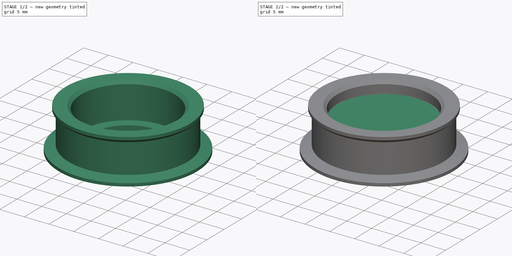
[diagram: build sequence overview — one tinted view per stage of 2, left to right]
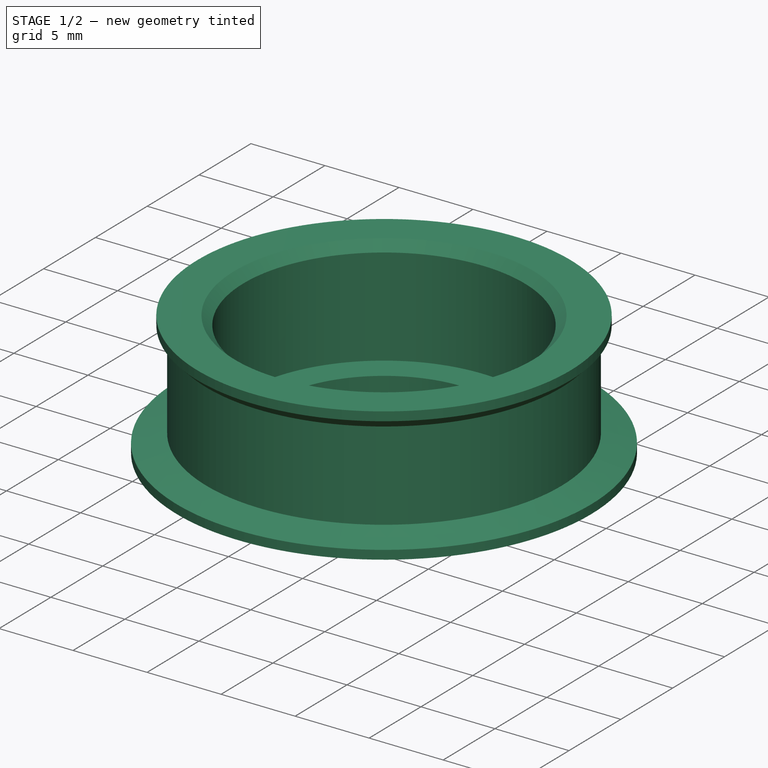
[diagram: stage 1 of 2 — iso view after this stage's code; geometry added in this stage tinted green]
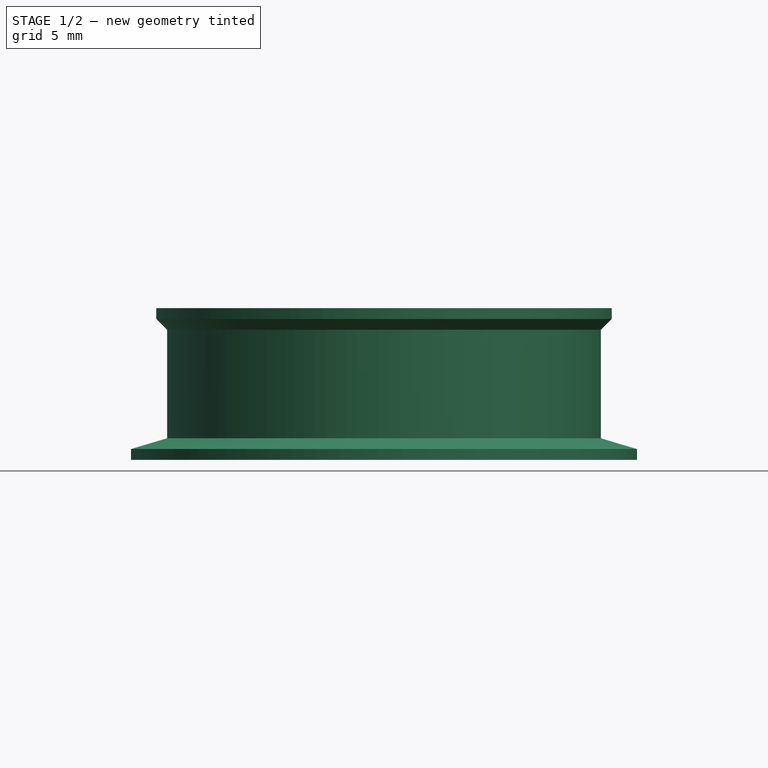
[diagram: stage 1 of 2 — front view after this stage's code; geometry added in this stage tinted green]
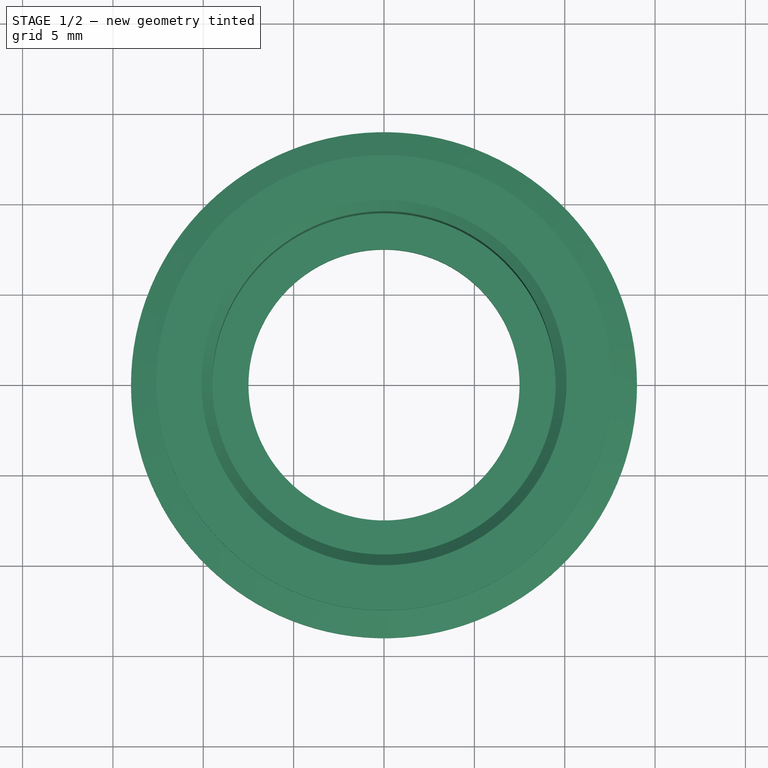
[diagram: stage 1 of 2 — top view after this stage's code; geometry added in this stage tinted green]
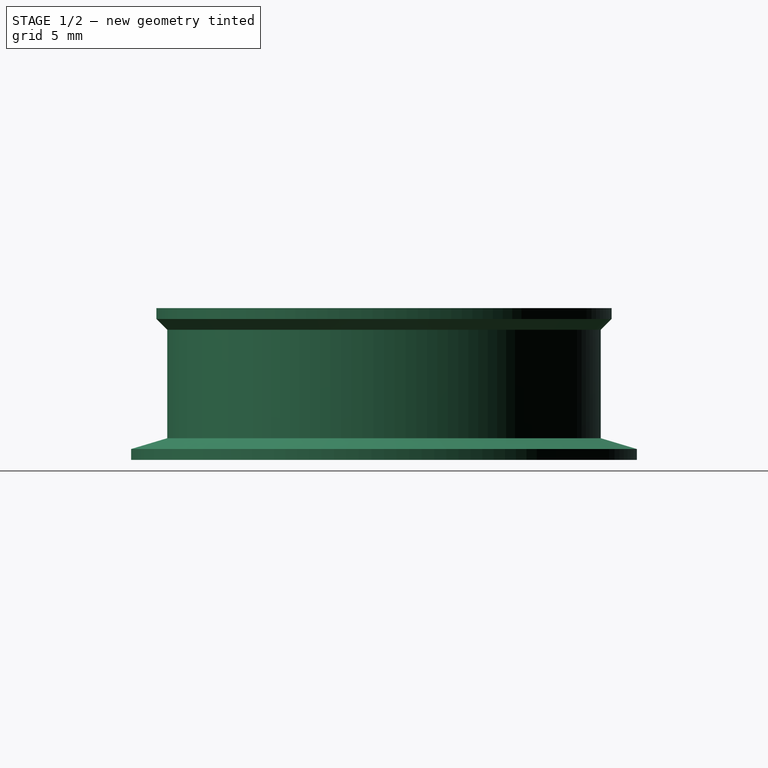
[diagram: stage 1 of 2 — right view after this stage's code; geometry added in this stage tinted green]
FCSTD DOCUMENT  (FreeCAD 0.16R6712 (Git))
Label: bearing_idler_v2
License: All rights reserved
LicenseURL: http://en.wikipedia.org/wiki/All_rights_reserved
objects: Part::Cylinder×1, Sketcher::SketchObject×1, PartDesign::Revolution×1, PartDesign::Chamfer×1
note: 5 computed .brp shape members not serialized (recipe doc carries the construction recipe); baked Part::Feature solids carry a one-line shape summary decoded from their .brp

FEATURE [Sketcher::SketchObject] Sketch
  Placement = pos=(0,0,0) rot=(1,0,0;1.5708rad)
  expr: Constraints[13] = 19mm / 2
  sketch-geometry (13):
    g0: LineSegment StartX=-14 StartY=0 StartZ=0 EndX=-14 EndY=0.6 EndZ=0
    g1: LineSegment StartX=-14 StartY=0.6 StartZ=0 EndX=-12 EndY=1.2 EndZ=0
    g2: LineSegment StartX=-12 StartY=8.4 StartZ=0 EndX=-9.5 EndY=8.4 EndZ=0
    g3: LineSegment StartX=-9.5 StartY=8.4 StartZ=0 EndX=-9.5 EndY=1.2 EndZ=0
    g4: LineSegment StartX=-9.5 StartY=1.2 StartZ=0 EndX=-7.5 EndY=1.2 EndZ=0
    g5: LineSegment StartX=-7.5 StartY=1.2 StartZ=0 EndX=-7.5 EndY=0 EndZ=0
    g6: LineSegment StartX=-7.5 StartY=0 StartZ=0 EndX=-14 EndY=0 EndZ=0
    g7: LineSegment [constr] StartX=-12 StartY=1.2 StartZ=0 EndX=-9.5 EndY=1.2 EndZ=0
    g8: LineSegment StartX=-12 StartY=1.2 StartZ=0 EndX=-12 EndY=7.2 EndZ=0
    g9: LineSegment StartX=-12 StartY=7.2 StartZ=0 EndX=-12.6 EndY=7.8 EndZ=0
    g10: LineSegment StartX=-12.6 StartY=7.8 StartZ=0 EndX=-12.6 EndY=8.4 EndZ=0
    g11: LineSegment StartX=-12.6 StartY=8.4 StartZ=0 EndX=-12 EndY=8.4 EndZ=0
    g12: LineSegment [constr] StartX=-12 StartY=8.4 StartZ=0 EndX=-12 EndY=7.2 EndZ=0
  constraints (37):
    c: PointOnObject(g0,g-1)
    c: Vertical(g0)
    c: Coincident(g0,g1)
    c: Horizontal(g2)
    c: Coincident(g2,g3)
    c: Vertical(g3)
    c: Coincident(g3,g4)
    c: Horizontal(g4)
    c: Coincident(g4,g5)
    c: PointOnObject(g5,g-1)
    c: Vertical(g5)
    c: Coincident(g5,g6)
    c: Coincident(g6,g0)
    c: DistanceX(g2,g-1) = 9.5
    c: DistanceY(g5,g5) = 1.2
    c: DistanceX(g2,g-1) = 12
    c: DistanceX(g0,g-1) = 14
    c: Coincident(g7,g1)
    c: Coincident(g7,g3)
    c: Horizontal(g7)
    c: DistanceY(g0,g0) = 0.6
    c: DistanceX(g4,g4) = 2
    c: Coincident(g1,g8)
    c: Vertical(g8)
    c: Coincident(g8,g9)
    c: Coincident(g9,g10)
    c: Vertical(g10)
    c: Coincident(g10,g11)
    c: Coincident(g11,g2)
    c: Horizontal(g11)
    c: Angle(g9,g8) = 2.35619
    c: DistanceY(g8,g8) = 6
    c: DistanceY(g10,g10) = 0.6
    c: Coincident(g12,g2)
    c: Coincident(g12,g8)
    c: Vertical(g12)
    c: DistanceX(g11,g11) = 0.6
FEATURE [PartDesign::Revolution] Revolution
  Angle = 360
  Axis = (0,0,1)
  Base = (0,0,0)
  Placement = pos=(0,0,0) rot=(1,0,0;1.5708rad)
  ReferenceAxis = -> Sketch [V_Axis]
  Sketch = -> Sketch
FEATURE [PartDesign::Chamfer] Chamfer
  Base = -> Revolution [Edge13]
  Placement = pos=(0,0,0) rot=(1,0,0;1.5708rad)
  Size = 0.6
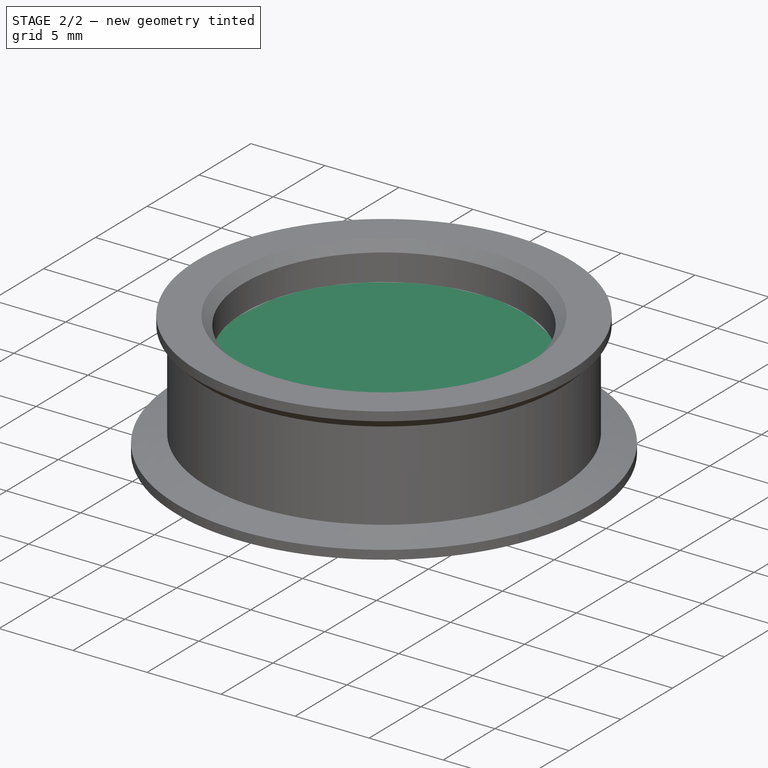
[diagram: stage 2 of 2 — iso view after this stage's code; geometry added in this stage tinted green]
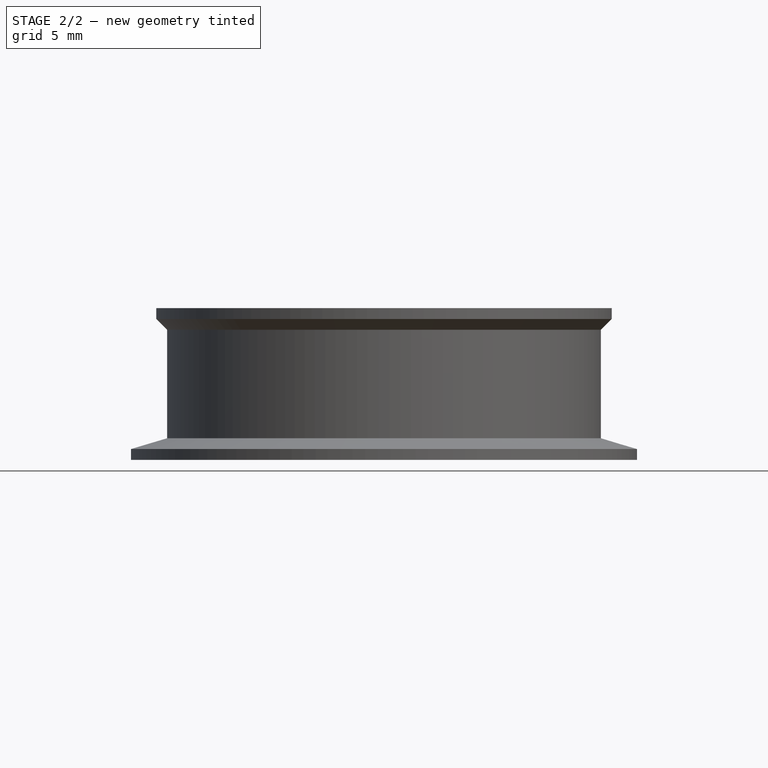
[diagram: stage 2 of 2 — front view after this stage's code; geometry added in this stage tinted green]
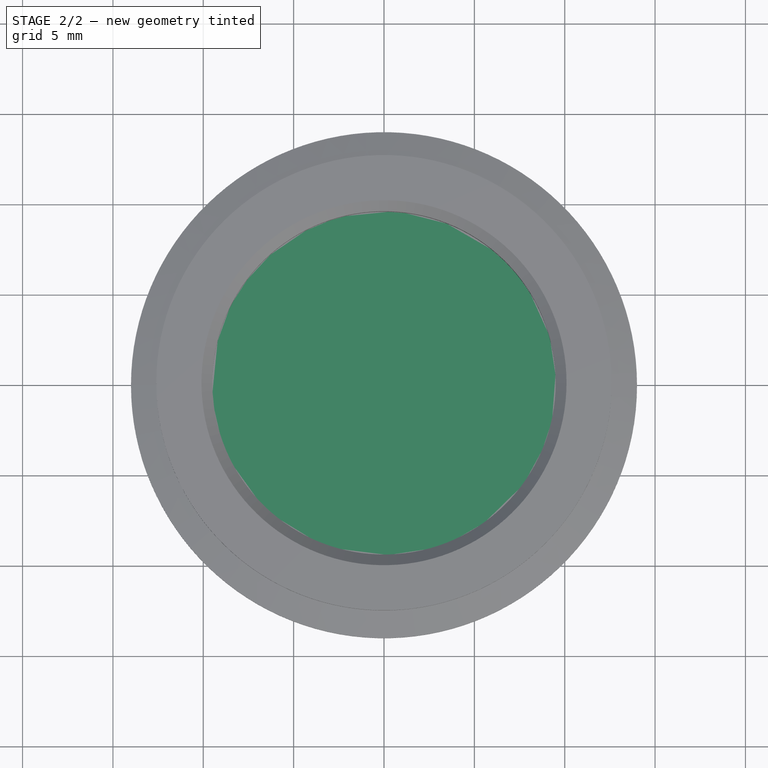
[diagram: stage 2 of 2 — top view after this stage's code; geometry added in this stage tinted green]
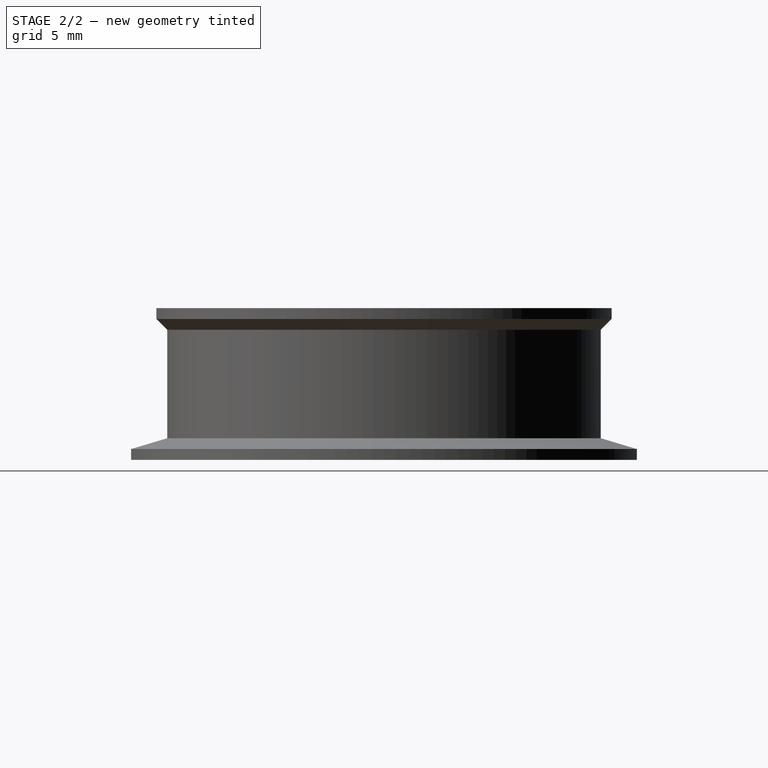
[diagram: stage 2 of 2 — right view after this stage's code; geometry added in this stage tinted green]
FEATURE [Part::Cylinder] Cylinder
  Angle = 360
  Height = 6
  Radius = 9.5
  expr: Radius = 19mm / 2
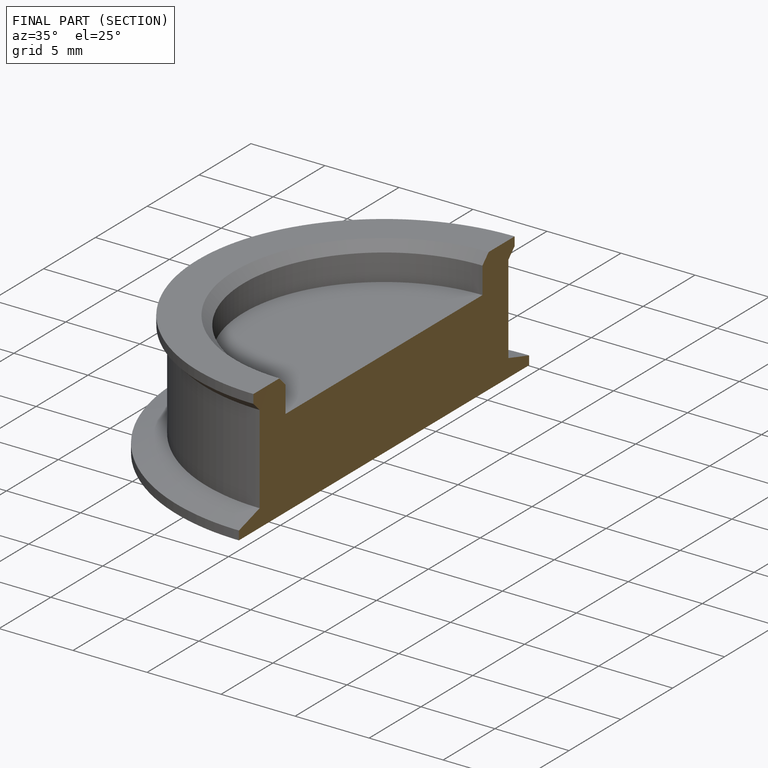
[diagram: finished part — half-section view (interior)]
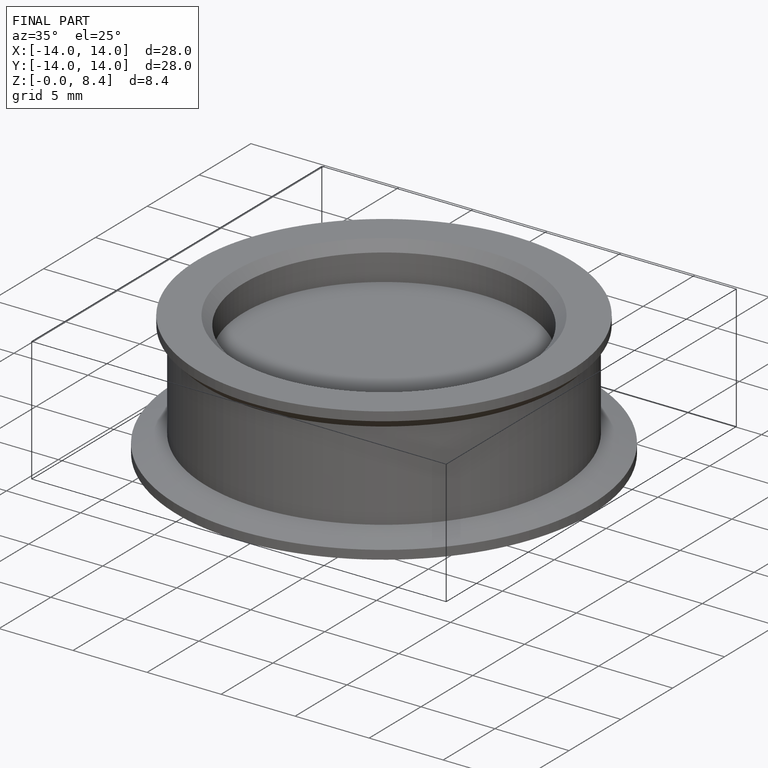
[diagram: finished part — iso view with bounding-box wireframe]
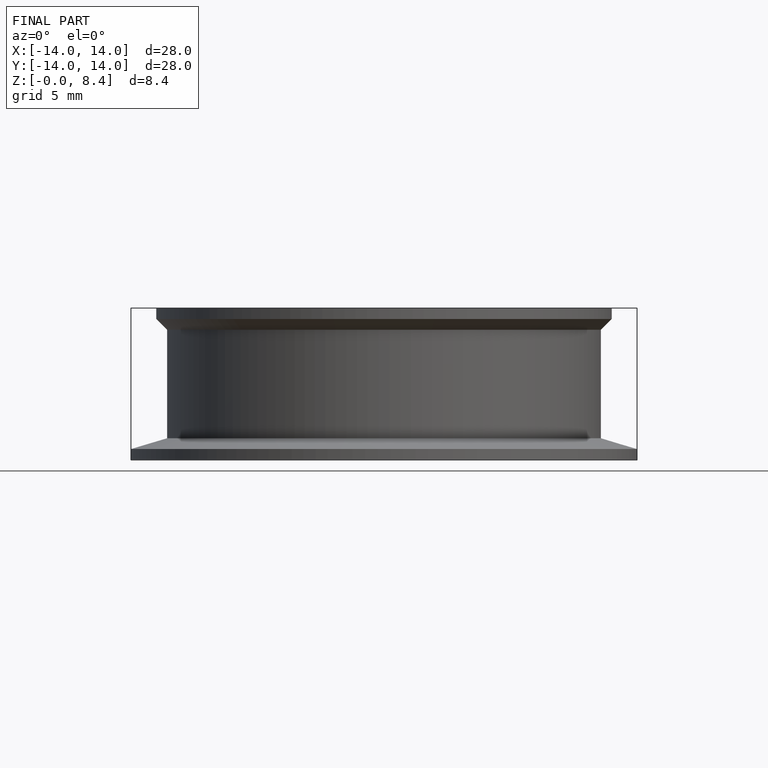
[diagram: finished part — front view with bounding-box wireframe]
